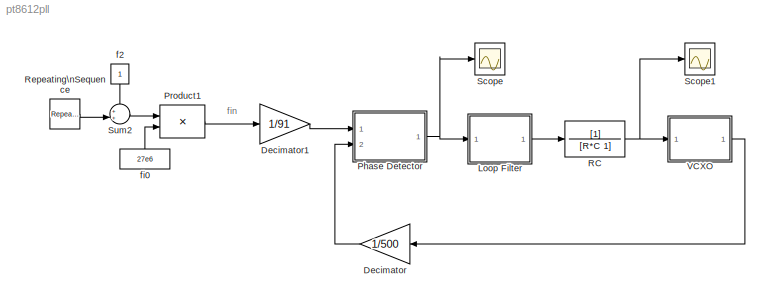
MODEL pt8612pll
KIND model
CONFIG AbsTol = auto
CONFIG FixedStep = auto
CONFIG MaxStep = auto
CONFIG MinStep = auto
CONFIG RelTol = 1e-3
CONFIG Solver = ode45
CONFIG SolverMode = Auto
CONFIG StartTime = 0.0
CONFIG StopTime = 4
BLOCK [Gain] Decimator
  Gain = 1/500
BLOCK [Gain] Decimator1
  Gain = 1/91
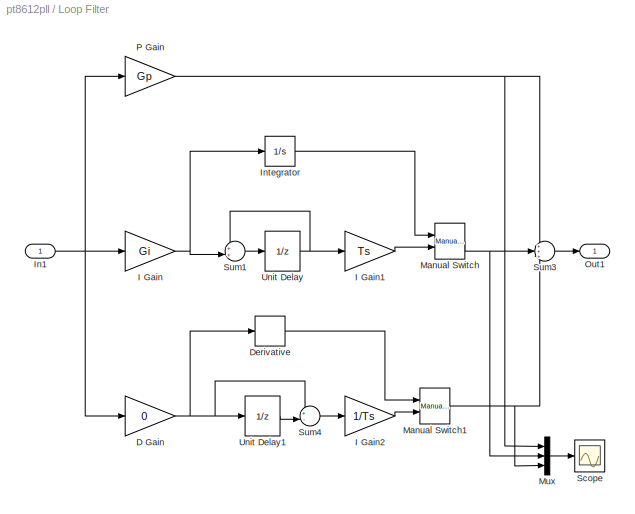
BLOCK [SubSystem] Loop Filter
  Ports = [1, 1]
  TreatAsAtomicUnit = off
BLOCK [Gain] Loop Filter/D Gain
  Gain = 0
BLOCK [Derivative] Loop Filter/Derivative
BLOCK [Gain] Loop Filter/I Gain
  Gain = Gi
BLOCK [Gain] Loop Filter/I Gain1
  Gain = Ts
BLOCK [Gain] Loop Filter/I Gain2
  Gain = 1/Ts
BLOCK [Inport] Loop Filter/In1
BLOCK [Integrator] Loop Filter/Integrator
  Ports = [1, 1]
BLOCK [Reference] Loop Filter/Manual Switch  REF=simulink/Signal\nRouting/Manual Switch
  Ports = [2, 1]
  SourceBlock = simulink/Signal\nRouting/Manual Switch
  SourceType = Manual Switch
  action = 0
  sw = 1
BLOCK [Reference] Loop Filter/Manual Switch1  REF=simulink/Signal\nRouting/Manual Switch
  Ports = [2, 1]
  SourceBlock = simulink/Signal\nRouting/Manual Switch
  SourceType = Manual Switch
  action = 0
  sw = 1
BLOCK [Mux] Loop Filter/Mux
  DisplayOption = bar
  Inputs = 3
  Ports = [3, 1]
BLOCK [Outport] Loop Filter/Out1
BLOCK [Gain] Loop Filter/P Gain
  Gain = Gp
BLOCK [Scope] Loop Filter/Scope
  DataFormat = StructureWithTime
  LimitDataPoints = off
  NumInputPorts = 1
  Ports = [1]
  SaveName = ScopeData2
  YMax = 1.1
  YMin = 0
  ZoomMode = yonly
BLOCK [Sum] Loop Filter/Sum1
  IconShape = round
  InputSameDT = off
  Inputs = ++|
  OutDataTypeMode = Inherit via internal rule
  Ports = [2, 1]
BLOCK [Sum] Loop Filter/Sum3
  IconShape = round
  InputSameDT = off
  Inputs = +++
  OutDataTypeMode = Inherit via internal rule
  Ports = [3, 1]
BLOCK [Sum] Loop Filter/Sum4
  IconShape = round
  InputSameDT = off
  Inputs = +-|
  OutDataTypeMode = Inherit via internal rule
  Ports = [2, 1]
BLOCK [UnitDelay] Loop Filter/Unit Delay
  SampleTime = -1
BLOCK [UnitDelay] Loop Filter/Unit Delay1
  SampleTime = -1
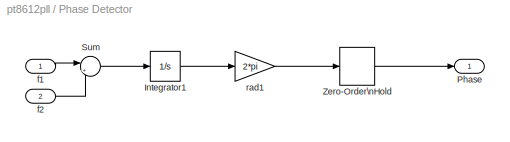
BLOCK [SubSystem] Phase Detector
  Ports = [2, 1]
  TreatAsAtomicUnit = off
BLOCK [Integrator] Phase Detector/Integrator1
  Ports = [1, 1]
BLOCK [Outport] Phase Detector/Phase
BLOCK [Sum] Phase Detector/Sum
  IconShape = round
  InputSameDT = off
  Inputs = |+-
  OutDataTypeMode = Inherit via internal rule
  Ports = [2, 1]
BLOCK [ZeroOrderHold] Phase Detector/Zero-Order\nHold
  SampleTime = Ts
BLOCK [Inport] Phase Detector/f1
BLOCK [Inport] Phase Detector/f2
  Port = 2
BLOCK [Gain] Phase Detector/rad1
  Gain = 2*pi
BLOCK [Product] Product1
  InputSameDT = off
  Ports = [2, 1]
BLOCK [TransferFcn] RC
  Denominator = [R*C 1]
BLOCK [Reference] Repeating\nSequence  REF=simulink/Sources/Repeating\nSequence
  Ports = [0, 1]
  SourceBlock = simulink/Sources/Repeating\nSequence
  SourceType = Repeating table
  rep_seq_t = [0 0.1 0.1 10]
  rep_seq_y = [0 0 1 1]*20e-6
BLOCK [Scope] Scope
  DataFormat = StructureWithTime
  LimitDataPoints = off
  NumInputPorts = 1
  Ports = [1]
  YMax = 1.9
  YMin = 5.55112e-017
  ZoomMode = xonly
BLOCK [Scope] Scope1
  DataFormat = StructureWithTime
  LimitDataPoints = off
  NumInputPorts = 1
  Ports = [1]
  SaveName = ScopeData1
  YMax = 1.05
  YMin = 0.99
  ZoomMode = yonly
BLOCK [Sum] Sum2
  IconShape = round
  InputSameDT = off
  Inputs = ++|
  OutDataTypeMode = Inherit via internal rule
  Ports = [2, 1]
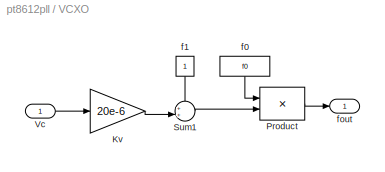
BLOCK [SubSystem] VCXO
  Ports = [1, 1]
  TreatAsAtomicUnit = off
BLOCK [Gain] VCXO/Kv
  Gain = 20e-6
BLOCK [Product] VCXO/Product
  InputSameDT = off
  Ports = [2, 1]
BLOCK [Sum] VCXO/Sum1
  IconShape = round
  InputSameDT = off
  Inputs = ++|
  OutDataTypeMode = Inherit via internal rule
  Ports = [2, 1]
BLOCK [Inport] VCXO/Vc
BLOCK [Constant] VCXO/f0
  Value = f0
BLOCK [Constant] VCXO/f1
BLOCK [Outport] VCXO/fout
BLOCK [Constant] f2
BLOCK [Constant] fi0
  Value = 27e6
ANNOTATION (root): fin
LINE Decimator1:1 -> Phase Detector:1
LINE Decimator:1 -> Phase Detector:2
NET Loop Filter/D Gain:1 -> Loop Filter/Derivative:1, Loop Filter/Sum4:1, Loop Filter/Unit Delay1:1
LINE Loop Filter/Derivative:1 -> Loop Filter/Manual Switch1:1
LINE Loop Filter/I Gain1:1 -> Loop Filter/Manual Switch:2
LINE Loop Filter/I Gain2:1 -> Loop Filter/Manual Switch1:2
NET Loop Filter/I Gain:1 -> Loop Filter/Integrator:1, Loop Filter/Sum1:2
NET Loop Filter/In1:1 -> Loop Filter/D Gain:1, Loop Filter/I Gain:1, Loop Filter/P Gain:1
LINE Loop Filter/Integrator:1 -> Loop Filter/Manual Switch:1
NET Loop Filter/Manual Switch1:1 -> Loop Filter/Mux:3, Loop Filter/Sum3:3
NET Loop Filter/Manual Switch:1 -> Loop Filter/Mux:2, Loop Filter/Sum3:2
LINE Loop Filter/Mux:1 -> Loop Filter/Scope:1
NET Loop Filter/P Gain:1 -> Loop Filter/Mux:1, Loop Filter/Sum3:1
LINE Loop Filter/Sum1:1 -> Loop Filter/Unit Delay:1
LINE Loop Filter/Sum3:1 -> Loop Filter/Out1:1
LINE Loop Filter/Sum4:1 -> Loop Filter/I Gain2:1
LINE Loop Filter/Unit Delay1:1 -> Loop Filter/Sum4:2
NET Loop Filter/Unit Delay:1 -> Loop Filter/I Gain1:1, Loop Filter/Sum1:1
LINE Loop Filter:1 -> RC:1
LINE Phase Detector/Integrator1:1 -> Phase Detector/rad1:1
LINE Phase Detector/Sum:1 -> Phase Detector/Integrator1:1
LINE Phase Detector/Zero-Order\nHold:1 -> Phase Detector/Phase:1
LINE Phase Detector/f1:1 -> Phase Detector/Sum:1
LINE Phase Detector/f2:1 -> Phase Detector/Sum:2
LINE Phase Detector/rad1:1 -> Phase Detector/Zero-Order\nHold:1
NET Phase Detector:1 -> Loop Filter:1, Scope:1
LINE Product1:1 -> Decimator1:1
NET RC:1 -> Scope1:1, VCXO:1
LINE Repeating\nSequence:1 -> Sum2:2
LINE Sum2:1 -> Product1:1
LINE VCXO/Kv:1 -> VCXO/Sum1:2
LINE VCXO/Product:1 -> VCXO/fout:1
LINE VCXO/Sum1:1 -> VCXO/Product:2
LINE VCXO/Vc:1 -> VCXO/Kv:1
LINE VCXO/f0:1 -> VCXO/Product:1
LINE VCXO/f1:1 -> VCXO/Sum1:1
LINE VCXO:1 -> Decimator:1
LINE f2:1 -> Sum2:1
LINE fi0:1 -> Product1:2
note: NET lines group one-source signal fan-out (src -> all destinations, sorted); 1:1 wires keep LINE
